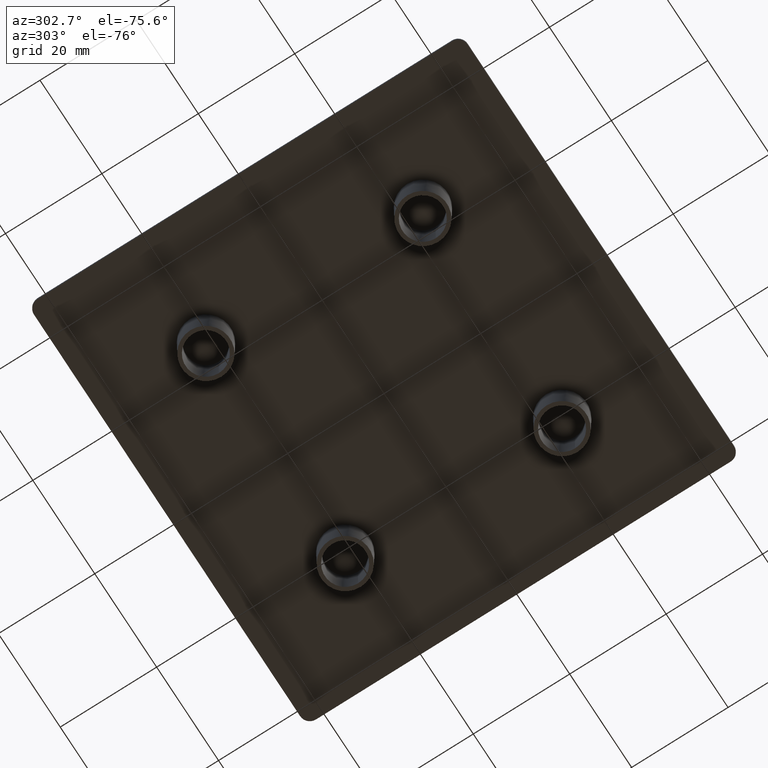
[diagram: clean part render]
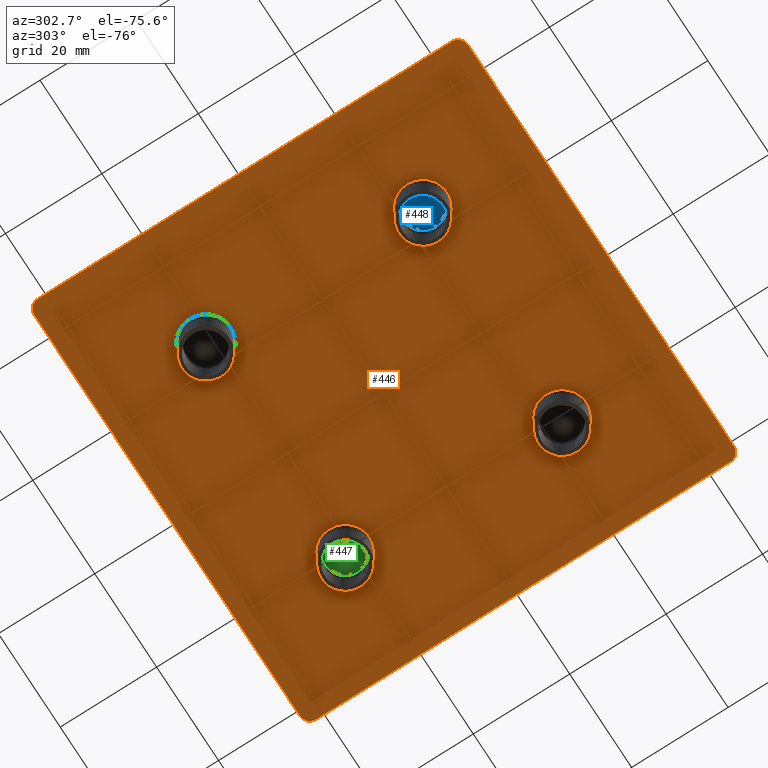
[diagram: same view with three faces highlighted in distinct colors, each labeled with its STEP entity id]
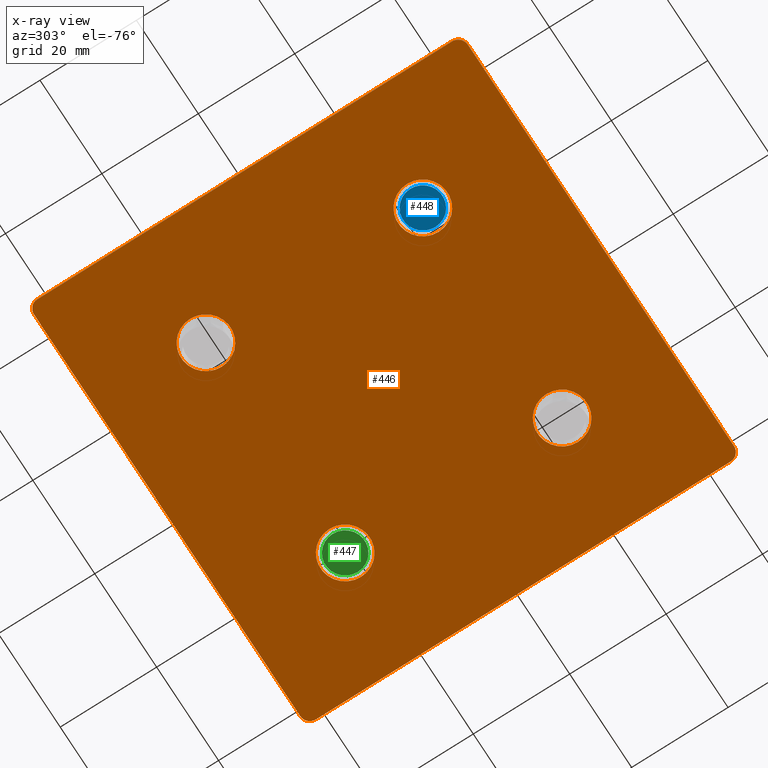
[diagram: x-ray of the same camera — body ghosted, the three highlighted faces saturated]
A machine part, auxiliary view with three faces highlighted in distinct colors.
The next image is the same camera in x-ray (body ghosted, the three faces saturated) — at least one of them is partly hidden behind the body in this view.
Their STEP definitions:

[orange] entity #446 — the highlighted planar face has unit normal (0, 0, 1).
#30=FACE_BOUND('',#96,.T.);
#31=FACE_BOUND('',#97,.T.);
#32=FACE_BOUND('',#98,.T.);
#33=FACE_BOUND('',#99,.T.);
#38=PLANE('',#512);
#58=FACE_OUTER_BOUND('',#95,.T.);
#95=EDGE_LOOP('',(#339,#340,#341,#342,#343,#344,#345,#346));
#96=EDGE_LOOP('',(#347));
#97=EDGE_LOOP('',(#348));
#98=EDGE_LOOP('',(#349));
#99=EDGE_LOOP('',(#350));
#131=LINE('',#764,#159);
#132=LINE('',#768,#160);
#133=LINE('',#772,#161);
#134=LINE('',#775,#162);
#159=VECTOR('',#611,10.);
#160=VECTOR('',#614,10.);
#161=VECTOR('',#617,10.);
#162=VECTOR('',#620,10.);
#183=CIRCLE('',#495,5.13091298696163);
#187=CIRCLE('',#502,5.13091298696163);
#191=CIRCLE('',#509,5.13091298696163);
#193=CIRCLE('',#513,2.);
#194=CIRCLE('',#514,2.);
#195=CIRCLE('',#515,2.);
#196=CIRCLE('',#516,2.);
#197=CIRCLE('',#517,5.13091298696163);
#215=VERTEX_POINT('',#727);
#219=VERTEX_POINT('',#740);
#223=VERTEX_POINT('',#753);
#225=VERTEX_POINT('',#760);
#226=VERTEX_POINT('',#761);
#227=VERTEX_POINT('',#763);
#228=VERTEX_POINT('',#765);
#229=VERTEX_POINT('',#767);
#230=VERTEX_POINT('',#769);
#231=VERTEX_POINT('',#771);
#232=VERTEX_POINT('',#773);
#233=VERTEX_POINT('',#776);
#252=EDGE_CURVE('',#215,#215,#183,.T.);
#258=EDGE_CURVE('',#219,#219,#187,.T.);
#264=EDGE_CURVE('',#223,#223,#191,.T.);
#267=EDGE_CURVE('',#225,#226,#193,.T.);
#268=EDGE_CURVE('',#225,#227,#131,.T.);
#269=EDGE_CURVE('',#228,#227,#194,.T.);
#270=EDGE_CURVE('',#228,#229,#132,.T.);
#271=EDGE_CURVE('',#230,#229,#195,.T.);
#272=EDGE_CURVE('',#230,#231,#133,.T.);
#273=EDGE_CURVE('',#232,#231,#196,.T.);
#274=EDGE_CURVE('',#232,#226,#134,.T.);
#275=EDGE_CURVE('',#233,#233,#197,.T.);
#339=ORIENTED_EDGE('',*,*,#267,.F.);
#340=ORIENTED_EDGE('',*,*,#268,.T.);
#341=ORIENTED_EDGE('',*,*,#269,.F.);
#342=ORIENTED_EDGE('',*,*,#270,.T.);
#343=ORIENTED_EDGE('',*,*,#271,.F.);
#344=ORIENTED_EDGE('',*,*,#272,.T.);
#345=ORIENTED_EDGE('',*,*,#273,.F.);
#346=ORIENTED_EDGE('',*,*,#274,.T.);
#347=ORIENTED_EDGE('',*,*,#275,.T.);
#348=ORIENTED_EDGE('',*,*,#264,.T.);
#349=ORIENTED_EDGE('',*,*,#258,.T.);
#350=ORIENTED_EDGE('',*,*,#252,.T.);
#446=ADVANCED_FACE('',(#58,#30,#31,#32,#33),#38,.F.);
#495=AXIS2_PLACEMENT_3D('',#728,#568,#569);
#502=AXIS2_PLACEMENT_3D('',#741,#584,#585);
#509=AXIS2_PLACEMENT_3D('',#754,#600,#601);
#512=AXIS2_PLACEMENT_3D('',#759,#607,#608);
#513=AXIS2_PLACEMENT_3D('',#762,#609,#610);
#514=AXIS2_PLACEMENT_3D('',#766,#612,#613);
#515=AXIS2_PLACEMENT_3D('',#770,#615,#616);
#516=AXIS2_PLACEMENT_3D('',#774,#618,#619);
#517=AXIS2_PLACEMENT_3D('',#777,#621,#622);
#568=DIRECTION('center_axis',(0.,0.,1.));
#569=DIRECTION('ref_axis',(-1.,0.,0.));
#584=DIRECTION('center_axis',(0.,0.,1.));
#585=DIRECTION('ref_axis',(-1.,0.,0.));
#600=DIRECTION('center_axis',(0.,0.,1.));
#601=DIRECTION('ref_axis',(-1.,0.,0.));
#607=DIRECTION('center_axis',(0.,0.,1.));
#608=DIRECTION('ref_axis',(1.,0.,0.));
#609=DIRECTION('center_axis',(0.,0.,1.));
#610=DIRECTION('ref_axis',(0.707106781186551,0.707106781186544,0.));
#611=DIRECTION('',(-9.86864910777917E-17,-1.,0.));
#612=DIRECTION('center_axis',(0.,0.,1.));
#613=DIRECTION('ref_axis',(0.707106781186548,-0.707106781186548,0.));
#614=DIRECTION('',(-1.,-1.97372982155583E-16,0.));
#615=DIRECTION('center_axis',(0.,0.,1.));
#616=DIRECTION('ref_axis',(-0.707106781186548,-0.707106781186548,0.));
#617=DIRECTION('',(9.86864910777917E-17,1.,0.));
#618=DIRECTION('center_axis',(0.,0.,1.));
#619=DIRECTION('ref_axis',(-0.707106781186548,0.707106781186548,0.));
#620=DIRECTION('',(1.,1.97372982155583E-16,0.));
#621=DIRECTION('center_axis',(0.,0.,1.));
#622=DIRECTION('ref_axis',(-1.,0.,0.));
#727=CARTESIAN_POINT('',(27.6309129869616,-22.5,0.));
#728=CARTESIAN_POINT('Origin',(22.5,-22.5,0.));
#740=CARTESIAN_POINT('',(-17.3690870130384,-22.5,0.));
#741=CARTESIAN_POINT('Origin',(-22.5,-22.5,0.));
#753=CARTESIAN_POINT('',(27.6309129869616,22.5,0.));
#754=CARTESIAN_POINT('Origin',(22.5,22.5,0.));
#759=CARTESIAN_POINT('Origin',(2.96059473233375E-15,-3.70074341541719E-15,
0.));
#760=CARTESIAN_POINT('',(45.,43.,0.));
#761=CARTESIAN_POINT('',(43.,45.,0.));
#762=CARTESIAN_POINT('Origin',(43.,43.,0.));
#763=CARTESIAN_POINT('',(45.,-43.,0.));
#764=CARTESIAN_POINT('',(45.,45.,0.));
#765=CARTESIAN_POINT('',(43.,-45.,0.));
#766=CARTESIAN_POINT('Origin',(43.,-43.,0.));
#767=CARTESIAN_POINT('',(-43.,-45.,0.));
#768=CARTESIAN_POINT('',(45.,-45.,0.));
#769=CARTESIAN_POINT('',(-45.,-43.,0.));
#770=CARTESIAN_POINT('Origin',(-43.,-43.,0.));
#771=CARTESIAN_POINT('',(-45.,43.,0.));
#772=CARTESIAN_POINT('',(-45.,-45.,0.));
#773=CARTESIAN_POINT('',(-43.,45.,0.));
#774=CARTESIAN_POINT('Origin',(-43.,43.,0.));
#775=CARTESIAN_POINT('',(-45.,45.,0.));
#776=CARTESIAN_POINT('',(-17.3690870130384,22.5,0.));
#777=CARTESIAN_POINT('Origin',(-22.5,22.5,0.));

[blue] entity #448 — the highlighted planar face has unit normal (0, 0, 1).
#40=PLANE('',#519);
#60=FACE_OUTER_BOUND('',#101,.T.);
#101=EDGE_LOOP('',(#352));
#186=CIRCLE('',#500,4.06908701303837);
#218=VERTEX_POINT('',#736);
#257=EDGE_CURVE('',#218,#218,#186,.T.);
#352=ORIENTED_EDGE('',*,*,#257,.T.);
#448=ADVANCED_FACE('',(#60),#40,.F.);
#500=AXIS2_PLACEMENT_3D('',#738,#580,#581);
#519=AXIS2_PLACEMENT_3D('',#779,#625,#626);
#580=DIRECTION('center_axis',(0.,0.,-1.));
#581=DIRECTION('ref_axis',(-1.,0.,0.));
#625=DIRECTION('center_axis',(0.,0.,1.));
#626=DIRECTION('ref_axis',(1.,0.,0.));
#736=CARTESIAN_POINT('',(-18.4309129869616,-22.5,0.));
#738=CARTESIAN_POINT('Origin',(-22.5,-22.5,0.));
#779=CARTESIAN_POINT('Origin',(2.96059473233375E-15,-3.70074341541719E-15,
0.));

[green] entity #447 — the highlighted planar face has unit normal (0, 0, 1).
#39=PLANE('',#518);
#59=FACE_OUTER_BOUND('',#100,.T.);
#100=EDGE_LOOP('',(#351));
#190=CIRCLE('',#507,4.06908701303837);
#222=VERTEX_POINT('',#749);
#263=EDGE_CURVE('',#222,#222,#190,.T.);
#351=ORIENTED_EDGE('',*,*,#263,.T.);
#447=ADVANCED_FACE('',(#59),#39,.F.);
#507=AXIS2_PLACEMENT_3D('',#751,#596,#597);
#518=AXIS2_PLACEMENT_3D('',#778,#623,#624);
#596=DIRECTION('center_axis',(0.,0.,-1.));
#597=DIRECTION('ref_axis',(-1.,0.,0.));
#623=DIRECTION('center_axis',(0.,0.,1.));
#624=DIRECTION('ref_axis',(1.,0.,0.));
#749=CARTESIAN_POINT('',(26.5690870130384,22.5,0.));
#751=CARTESIAN_POINT('Origin',(22.5,22.5,0.));
#778=CARTESIAN_POINT('Origin',(2.96059473233375E-15,-3.70074341541719E-15,
0.));